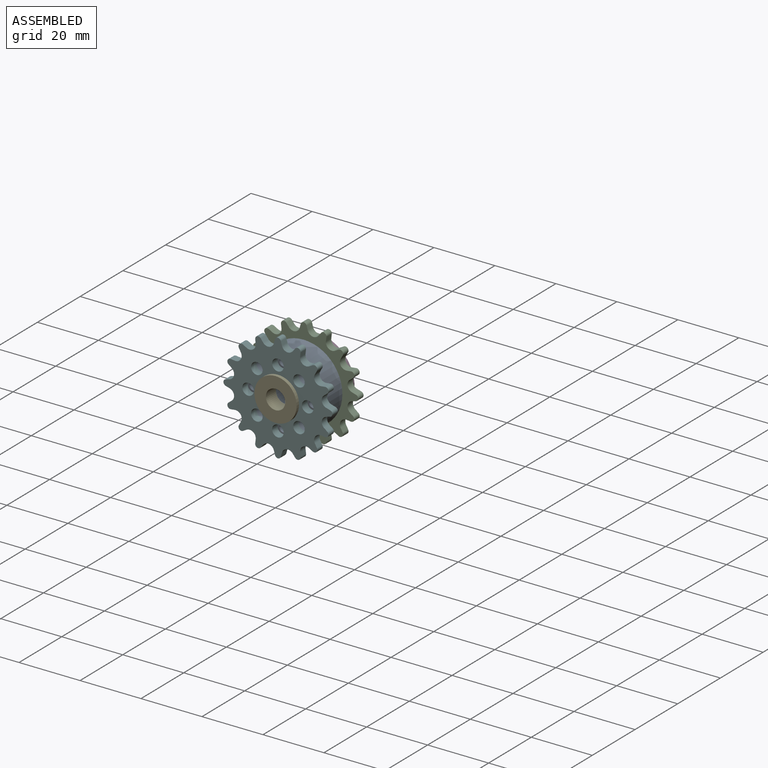
[diagram: assembled view]
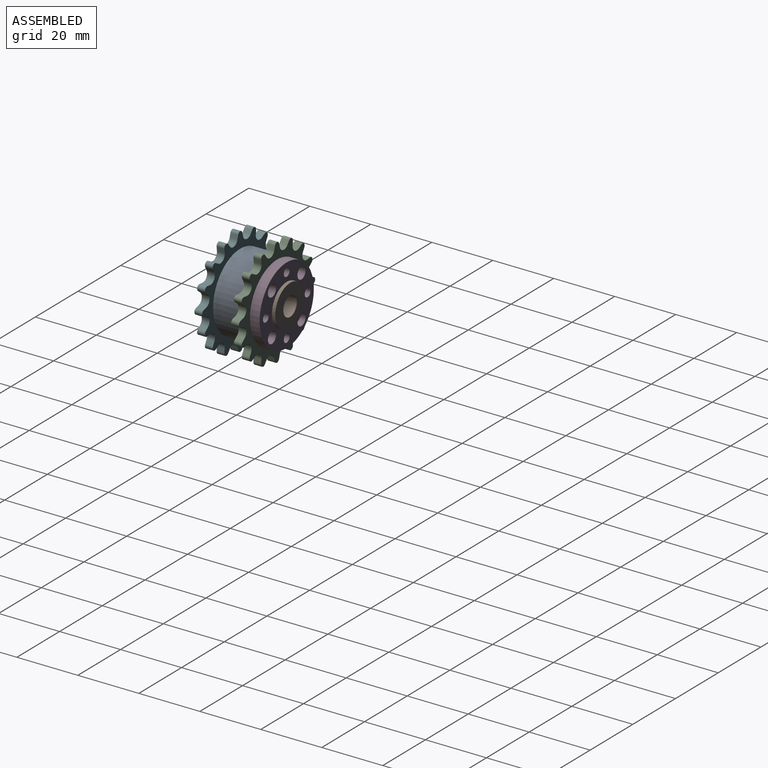
[diagram: assembled view, second angle]
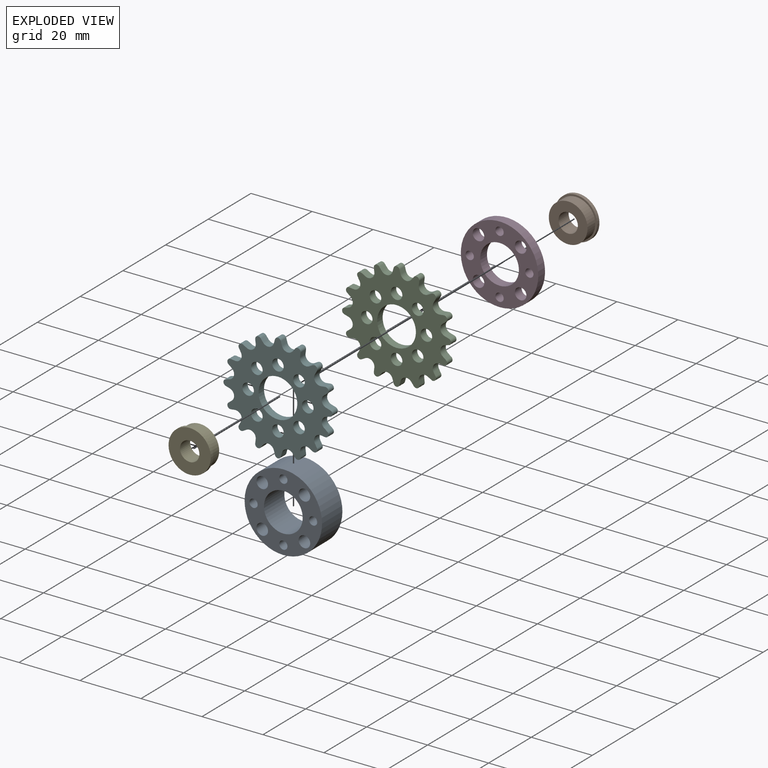
[diagram: exploded view]
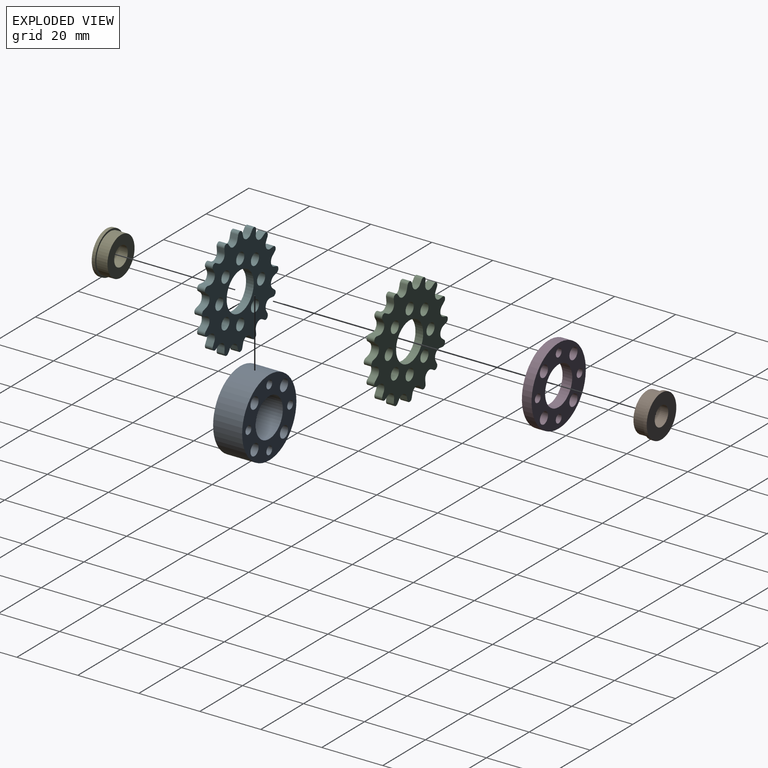
[diagram: exploded view, second angle]
ASSEMBLY  parts=6 mates=8
PART A: 12 faces, bbox 25.4x9.5x25.4 mm
  f0: cylinder r=6.35mm len=12.7mm, axis (0,1,0), area 380mm2, adj f2,f3
  f1: cylinder r=12.7mm len=25.4mm, axis (0,1,0), area 760.1mm2, adj f2,f3
  f2: plane 25.4x25.4mm, normal (0,-1,0), area 311.7mm2, adj f0,f1,f4,f5,f6,f7,f8,f9
  f3: plane 25.4x25.4mm, normal (0,1,0), area 311.7mm2, adj f0,f1,f4,f5,f6,f7,f8,f9
  f4: cylinder r=1.35mm len=9.53mm, axis (0,1,0), area 80.9mm2, adj f2,f3
  f5: cylinder r=1.35mm len=9.53mm, axis (0,1,0), area 80.9mm2, adj f2,f3
  f6: cylinder r=1.35mm len=9.53mm, axis (0,1,0), area 80.9mm2, adj f2,f3
  f7: cylinder r=1.35mm len=9.53mm, axis (0,1,0), area 80.9mm2, adj f2,f3
  f8: cylinder r=1.9mm len=9.53mm, axis (0,1,0), area 113.6mm2, adj f2,f3
  f9: cylinder r=1.9mm len=9.53mm, axis (0,1,0), area 113.6mm2, adj f2,f3
  f10: cylinder r=1.9mm len=9.53mm, axis (0,1,0), area 113.6mm2, adj f2,f3
  f11: cylinder r=1.9mm len=9.53mm, axis (0,1,0), area 113.6mm2, adj f2,f3
PART B: 6 faces, bbox 13.9x4.8x13.9 mm
  f0: plane 13.87x13.87mm, normal (0,1,0), area 119.4mm2, adj f1,f5
  f1: cylinder r=3.17mm len=6.35mm, axis (0,1,0), area 94.8mm2, adj f0,f2
  f2: plane 12.7x12.7mm, normal (0,-1,0), area 95mm2, adj f1,f3
  f3: cylinder r=6.35mm len=12.7mm, axis (0,1,0), area 144.9mm2, adj f2,f4
  f4: plane 13.87x13.87mm, normal (0,-1,0), area 24.4mm2, adj f3,f5
  f5: cylinder r=6.93mm len=13.87mm, axis (0,1,0), area 48.7mm2, adj f0,f4
PART C: 75 faces, bbox 35.7x2.5x35.7 mm
  f0: plane 2.54x1.19mm, normal (0.87,0,0.49), area 3.5mm2, adj f1,f63,f65,f66
  f1: cylinder r=2mm len=2.98mm, axis (0,1,0), area 11.2mm2, adj f0,f2,f65,f66
  f2: plane 2.54x1.35mm, normal (-0.12,0,-0.99), area 3.5mm2, adj f1,f3,f65,f66
  f3: cylinder r=1mm len=2.54mm, axis (0,1,0), area 6.6mm2, adj f2,f4,f65,f66
  f4: plane 2.54x1.07mm, normal (0.62,0,0.79), area 3.5mm2, adj f3,f5,f65,f66
  f5: cylinder r=2mm len=3.5mm, axis (0,1,0), area 11.2mm2, adj f4,f6,f65,f66
  f6: plane 2.54x1.31mm, normal (0.27,0,-0.96), area 3.5mm2, adj f5,f7,f65,f66
  f7: cylinder r=1mm len=2.54mm, axis (0,1,0), area 6.6mm2, adj f6,f8,f65,f66
  f8: plane 2.54x1.31mm, normal (0.27,0,0.96), area 3.5mm2, adj f7,f9,f65,f66
  f9: cylinder r=2mm len=3.5mm, axis (0,1,0), area 11.2mm2, adj f8,f10,f65,f66
  f10: plane 2.54x1.07mm, normal (0.62,0,-0.79), area 3.5mm2, adj f9,f11,f65,f66
  f11: cylinder r=1mm len=2.54mm, axis (0,1,0), area 6.6mm2, adj f10,f12,f65,f66
  f12: plane 2.54x1.35mm, normal (-0.12,0,0.99), area 3.5mm2, adj f11,f13,f65,f66
  f13: cylinder r=2mm len=2.98mm, axis (0,1,0), area 11.2mm2, adj f12,f14,f65,f66
  f14: plane 2.54x1.19mm, normal (0.87,0,-0.49), area 3.5mm2, adj f13,f15,f65,f66
  f15: cylinder r=1mm len=2.54mm, axis (0,1,0), area 6.6mm2, adj f14,f16,f65,f66
  f16: plane 2.54x1.19mm, normal (-0.49,0,0.87), area 3.5mm2, adj f15,f17,f65,f66
  f17: cylinder r=2mm len=2.98mm, axis (0,1,0), area 11.2mm2, adj f16,f18,f65,f66
  f18: plane 2.54x1.35mm, normal (0.99,0,-0.12), area 3.5mm2, adj f17,f19,f65,f66
  f19: cylinder r=1mm len=2.54mm, axis (0,1,0), area 6.6mm2, adj f18,f20,f65,f66
  f20: plane 2.54x1.07mm, normal (-0.79,0,0.62), area 3.5mm2, adj f19,f21,f65,f66
  f21: cylinder r=2mm len=3.5mm, axis (0,1,0), area 11.2mm2, adj f20,f22,f65,f66
  f22: plane 2.54x1.31mm, normal (0.96,0,0.27), area 3.5mm2, adj f21,f23,f65,f66
  f23: cylinder r=1mm len=2.54mm, axis (0,1,0), area 6.6mm2, adj f22,f24,f65,f66
  f24: plane 2.54x1.31mm, normal (-0.96,0,0.27), area 3.5mm2, adj f23,f25,f65,f66
  f25: cylinder r=2mm len=3.5mm, axis (0,1,0), area 11.2mm2, adj f24,f26,f65,f66
  f26: plane 2.54x1.07mm, normal (0.79,0,0.62), area 3.5mm2, adj f25,f27,f65,f66
  f27: cylinder r=1mm len=2.54mm, axis (0,1,0), area 6.6mm2, adj f26,f28,f65,f66
  f28: plane 2.54x1.35mm, normal (-0.99,0,-0.12), area 3.5mm2, adj f27,f29,f65,f66
  f29: cylinder r=2mm len=2.98mm, axis (0,1,0), area 11.2mm2, adj f28,f30,f65,f66
  f30: plane 2.54x1.19mm, normal (0.49,0,0.87), area 3.5mm2, adj f29,f31,f65,f66
  f31: cylinder r=1mm len=2.54mm, axis (0,1,0), area 6.6mm2, adj f30,f32,f65,f66
  f32: plane 2.54x1.19mm, normal (-0.87,0,-0.49), area 3.5mm2, adj f31,f33,f65,f66
  f33: cylinder r=2mm len=2.98mm, axis (0,1,0), area 11.2mm2, adj f32,f34,f65,f66
  f34: plane 2.54x1.35mm, normal (0.12,0,0.99), area 3.5mm2, adj f33,f35,f65,f66
  f35: cylinder r=1mm len=2.54mm, axis (0,1,0), area 6.6mm2, adj f34,f36,f65,f66
  f36: plane 2.54x1.07mm, normal (-0.62,0,-0.79), area 3.5mm2, adj f35,f37,f65,f66
  f37: cylinder r=2mm len=3.5mm, axis (0,1,0), area 11.2mm2, adj f36,f38,f65,f66
  f38: plane 2.54x1.31mm, normal (-0.27,0,0.96), area 3.5mm2, adj f37,f39,f65,f66
  f39: cylinder r=1mm len=2.54mm, axis (0,1,0), area 6.6mm2, adj f38,f40,f65,f66
  f40: plane 2.54x1.31mm, normal (-0.27,0,-0.96), area 3.5mm2, adj f39,f41,f65,f66
  f41: cylinder r=2mm len=3.5mm, axis (0,1,0), area 11.2mm2, adj f40,f42,f65,f66
  f42: plane 2.54x1.07mm, normal (-0.62,0,0.79), area 3.5mm2, adj f41,f43,f65,f66
  f43: cylinder r=1mm len=2.54mm, axis (0,1,0), area 6.6mm2, adj f42,f44,f65,f66
  f44: plane 2.54x1.35mm, normal (0.12,0,-0.99), area 3.5mm2, adj f43,f45,f65,f66
  f45: cylinder r=2mm len=2.98mm, axis (0,1,0), area 11.2mm2, adj f44,f46,f65,f66
  f46: plane 2.54x1.19mm, normal (-0.87,0,0.49), area 3.5mm2, adj f45,f47,f65,f66
  f47: cylinder r=1mm len=2.54mm, axis (0,1,0), area 6.6mm2, adj f46,f48,f65,f66
  f48: plane 2.54x1.19mm, normal (0.49,0,-0.87), area 3.5mm2, adj f47,f49,f65,f66
  f49: cylinder r=2mm len=2.98mm, axis (0,1,0), area 11.2mm2, adj f48,f50,f65,f66
  f50: plane 2.54x1.35mm, normal (-0.99,0,0.12), area 3.5mm2, adj f49,f51,f65,f66
  f51: cylinder r=1mm len=2.54mm, axis (0,1,0), area 6.6mm2, adj f50,f52,f65,f66
  f52: plane 2.54x1.07mm, normal (0.79,0,-0.62), area 3.5mm2, adj f51,f53,f65,f66
  f53: cylinder r=2mm len=3.5mm, axis (0,1,0), area 11.2mm2, adj f52,f54,f65,f66
  f54: plane 2.54x1.31mm, normal (-0.96,0,-0.27), area 3.5mm2, adj f53,f55,f65,f66
  f55: cylinder r=1mm len=2.54mm, axis (0,1,0), area 6.6mm2, adj f54,f56,f65,f66
  f56: plane 2.54x1.31mm, normal (0.96,0,-0.27), area 3.5mm2, adj f55,f57,f65,f66
  f57: cylinder r=2mm len=3.5mm, axis (0,1,0), area 11.2mm2, adj f56,f58,f65,f66
  f58: plane 2.54x1.07mm, normal (-0.79,0,-0.62), area 3.5mm2, adj f57,f59,f65,f66
  f59: cylinder r=1mm len=2.54mm, axis (0,1,0), area 6.6mm2, adj f58,f60,f65,f66
  f60: plane 2.54x1.35mm, normal (0.99,0,0.12), area 3.5mm2, adj f59,f61,f65,f66
  f61: cylinder r=2mm len=2.98mm, axis (0,1,0), area 11.2mm2, adj f60,f62,f65,f66
  f62: plane 2.54x1.19mm, normal (-0.49,0,-0.87), area 3.5mm2, adj f61,f63,f65,f66
  f63: cylinder r=1mm len=2.54mm, axis (0,1,0), area 6.6mm2, adj f0,f62,f65,f66
  f64: cylinder r=6.35mm len=12.7mm, axis (0,1,0), area 101.3mm2, adj f65,f66
  f65: plane 35.74x35.74mm, normal (0,-1,0), area 590.3mm2, adj f0,f1,f2,f3,f4,f5,f6,f7
  f66: plane 35.74x35.74mm, normal (0,1,0), area 590.3mm2, adj f0,f1,f2,f3,f4,f5,f6,f7
  f67: cylinder r=1.9mm len=3.8mm, axis (0,1,0), area 30.3mm2, adj f65,f66
  f68: cylinder r=1.9mm len=3.8mm, axis (0,1,0), area 30.3mm2, adj f65,f66
  f69: cylinder r=1.9mm len=3.8mm, axis (0,1,0), area 30.3mm2, adj f65,f66
  f70: cylinder r=1.9mm len=3.8mm, axis (0,1,0), area 30.3mm2, adj f65,f66
  f71: cylinder r=1.9mm len=3.8mm, axis (0,1,0), area 30.3mm2, adj f65,f66
  f72: cylinder r=1.9mm len=3.8mm, axis (0,1,0), area 30.3mm2, adj f65,f66
  f73: cylinder r=1.9mm len=3.8mm, axis (0,1,0), area 30.3mm2, adj f65,f66
  f74: cylinder r=1.9mm len=3.8mm, axis (0,1,0), area 30.3mm2, adj f65,f66
PART D: 12 faces, bbox 25.4x3.2x25.4 mm
  f0: cylinder r=6.35mm len=12.7mm, axis (0,1,0), area 126.7mm2, adj f2,f3
  f1: cylinder r=12.7mm len=25.4mm, axis (0,1,0), area 253.4mm2, adj f2,f3
  f2: plane 25.4x25.4mm, normal (0,-1,0), area 311.7mm2, adj f0,f1,f4,f5,f6,f7,f8,f9
  f3: plane 25.4x25.4mm, normal (0,1,0), area 311.7mm2, adj f0,f1,f4,f5,f6,f7,f8,f9
  f4: cylinder r=1.35mm len=3.18mm, axis (0,1,0), area 27mm2, adj f2,f3
  f5: cylinder r=1.35mm len=3.18mm, axis (0,1,0), area 27mm2, adj f2,f3
  f6: cylinder r=1.35mm len=3.18mm, axis (0,1,0), area 27mm2, adj f2,f3
  f7: cylinder r=1.35mm len=3.18mm, axis (0,1,0), area 27mm2, adj f2,f3
  f8: cylinder r=1.9mm len=3.8mm, axis (0,1,0), area 37.9mm2, adj f2,f3
  f9: cylinder r=1.9mm len=3.8mm, axis (0,1,0), area 37.9mm2, adj f2,f3
  f10: cylinder r=1.9mm len=3.8mm, axis (0,1,0), area 37.9mm2, adj f2,f3
  f11: cylinder r=1.9mm len=3.8mm, axis (0,1,0), area 37.9mm2, adj f2,f3
PART E: same geometry as B
PART F: same geometry as C
PLACE A t=(0,4.76,0)mm
PLACE B t=(0,10.48,0)mm
PLACE C t=(0,7.3,0)mm
PLACE D t=(0,10.48,0)mm
PLACE E rot(axis=(0,0,1),180deg) t=(0,-7.3,0)mm
PLACE F t=(0,-4.76,0)mm
MATE cylindrical F.f64 <-> A.f0  axis (0,1,0) through (0,-4.76,0)mm
MATE cylindrical E.f1 <-> F.f64  axis (0,1,0) through (0,-7.3,0)mm
MATE cylindrical B.f1 <-> D.f0  axis (0,-1,0) through (0,10.48,0)mm
MATE fastened D.f4 <-> C.f71  axis (0,1,0) through (-9.78,7.3,0)mm
MATE fastened F.f68 <-> A.f5  axis (0,1,0) through (0,-4.76,-9.78)mm
MATE cylindrical C.f64 <-> A.f1  axis (0,-1,0) through (0,4.76,0)mm
MATE cylindrical D.f1 <-> C.f64  axis (0,-1,0) through (0,7.3,0)mm
MATE fastened C.f68 <-> A.f5  axis (0,-1,0) through (0,4.76,-9.78)mm
